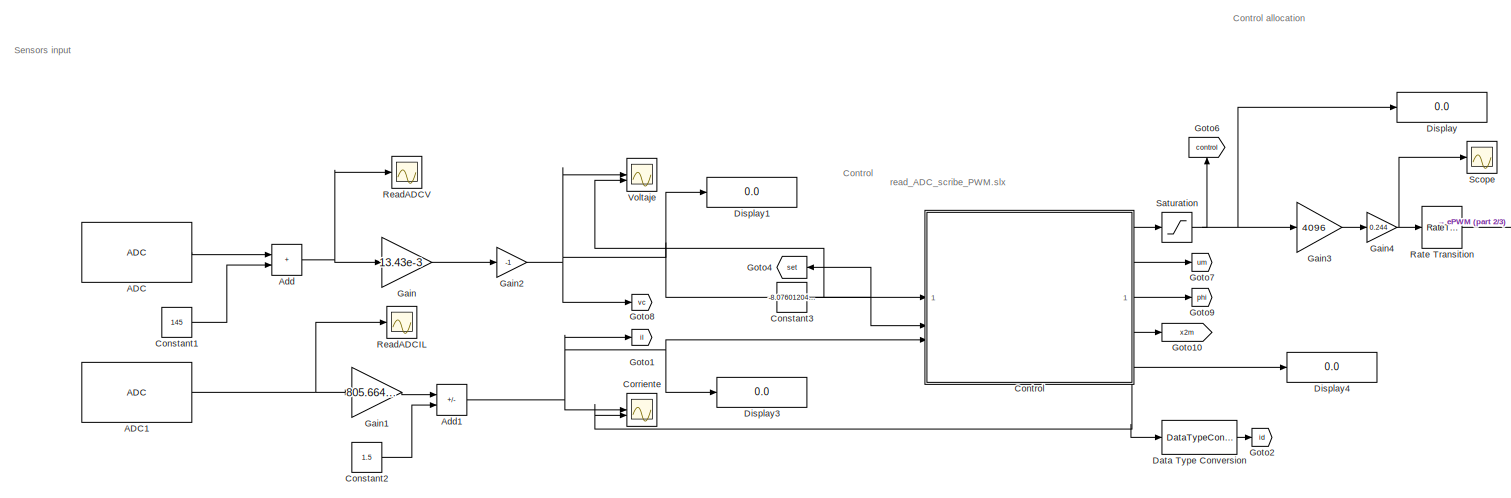
[diagram: root canvas - part 1/3, full width, top band]
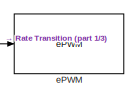
[diagram: root canvas - part 2/3, top right region]
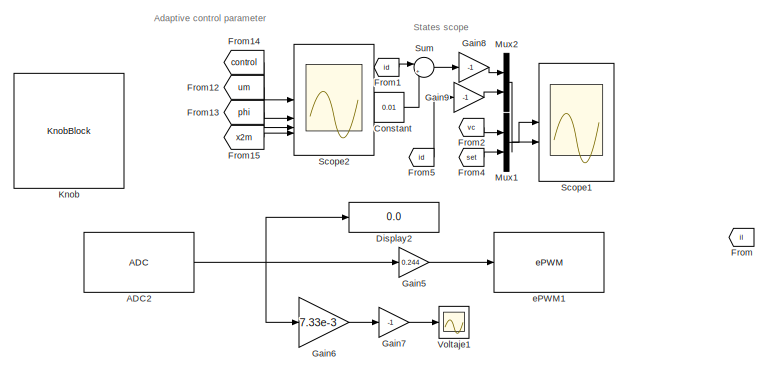
[diagram: root canvas - part 3/3, bottom center region]
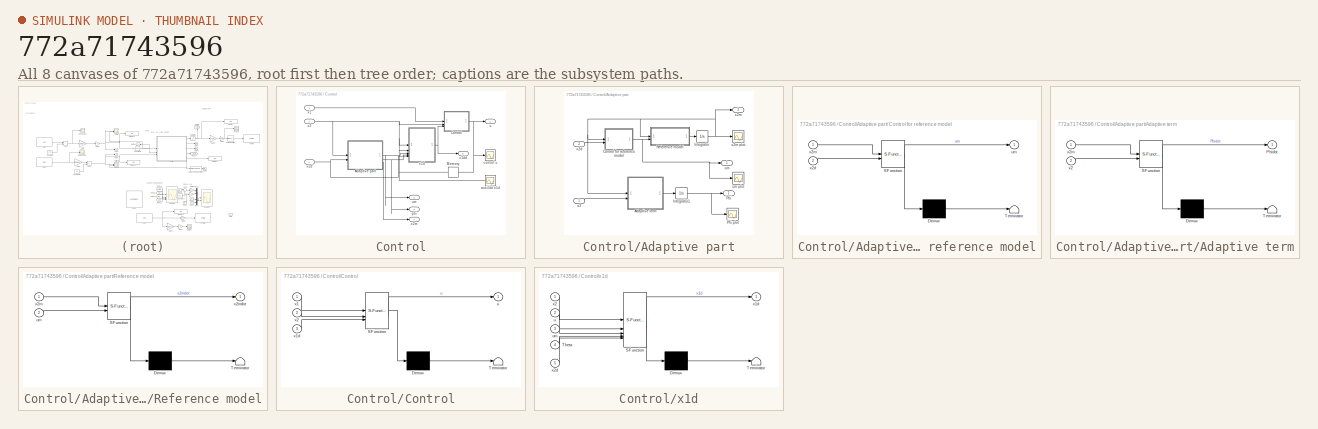
[diagram: thumbnail index - all 8 canvases of the model, root first then tree order]
MODEL slx_772a71743596
KIND model
CONFIG AbsTol = auto
CONFIG EnableMultiTasking = on
CONFIG FixedStep = Ts
CONFIG MaxStep = auto
CONFIG MinStep = auto
CONFIG RelTol = 1e-3
CONFIG SampleTimeConstraint = Unconstrained
CONFIG SolverName = FixedStepAuto
CONFIG StartTime = 0.0
CONFIG StopTime = Inf
BLOCK [Reference] ADC  REF=c2802xlib/ADC
  SourceBlock = c2802xlib/ADC
  SourceType = ADC Type 3-5
  UserDataPersistent = on
BLOCK [Reference] ADC1  REF=c2802xlib/ADC
  SourceBlock = c2802xlib/ADC
  SourceType = ADC Type 3-5
  UserDataPersistent = on
BLOCK [Reference] ADC2  REF=c2802xlib/ADC
  SourceBlock = c2802xlib/ADC
  SourceType = ADC Type 3-5
  UserDataPersistent = on
BLOCK [Sum] Add
  IconShape = rectangular
BLOCK [Sum] Add1
  IconShape = rectangular
  Inputs = +-
BLOCK [Constant] Constant
  Value = 0.01
BLOCK [Constant] Constant1
  Value = 145
BLOCK [Constant] Constant2
  Value = 1.5
BLOCK [Constant] Constant3
  Value = -8.076012049722078
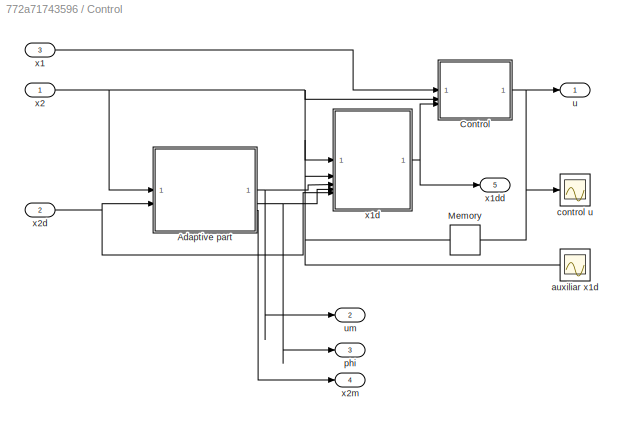
BLOCK [SubSystem] Control
BLOCK [SubSystem] Control/Adaptive part
BLOCK [SubSystem] Control/Adaptive part/ Control for reference model
  ErrorFcn = Stateflow.Translate.translate
  PermitHierarchicalResolution = ExplicitOnly
  SFBlockType = MATLAB Function
  TreatAsAtomicUnit = on
BLOCK [Demux] Control/Adaptive part/ Control for reference model/ Demux 
  Outputs = 1
BLOCK [S-Function] Control/Adaptive part/ Control for reference model/ SFunction 
  EnableBusSupport = on
  FunctionName = sf_sfun
  Parameters = am,bm,kapam,x2d_dot
  PortCounts = [2 2]
  SFcnIsStateOwnerBlock = off
  SFunctionDeploymentMode = off
  Tag = Stateflow S-Function 6
BLOCK [Terminator] Control/Adaptive part/ Control for reference model/ Terminator 
BLOCK [Outport] Control/Adaptive part/ Control for reference model/um
BLOCK [Inport] Control/Adaptive part/ Control for reference model/x2d
  Port = 2
BLOCK [Inport] Control/Adaptive part/ Control for reference model/x2m
BLOCK [SubSystem] Control/Adaptive part/Adaptive term
  ErrorFcn = Stateflow.Translate.translate
  PermitHierarchicalResolution = ExplicitOnly
  SFBlockType = MATLAB Function
  TreatAsAtomicUnit = on
BLOCK [Demux] Control/Adaptive part/Adaptive term/ Demux 
  Outputs = 1
BLOCK [S-Function] Control/Adaptive part/Adaptive term/ SFunction 
  EnableBusSupport = on
  FunctionName = sf_sfun
  Parameters = lambda
  PortCounts = [2 2]
  SFcnIsStateOwnerBlock = off
  SFunctionDeploymentMode = off
  Tag = Stateflow S-Function 5
BLOCK [Terminator] Control/Adaptive part/Adaptive term/ Terminator 
BLOCK [Outport] Control/Adaptive part/Adaptive term/Phidot
BLOCK [Inport] Control/Adaptive part/Adaptive term/x2
  Port = 2
BLOCK [Inport] Control/Adaptive part/Adaptive term/x2m
BLOCK [Integrator] Control/Adaptive part/Integrator
BLOCK [Integrator] Control/Adaptive part/Integrator1
BLOCK [Outport] Control/Adaptive part/Phi
  Port = 2
BLOCK [Scope] Control/Adaptive part/Phi plot
  Floating = off
  NumInputPorts = 1
  ScopeSpecificationString = Simulink.scopes.TimeScopeBlockCfg('CurrentConfiguration', extmgr.ConfigurationSet(extmgr.Configuration('Core','General UI',true),extmgr.Configuration('Core','Source UI',true),extmgr.Configuration('Sources','WiredSimulink',true,'DataLoggingVariableName','ScopeData2'),extmgr.Configuration('Visuals','Time Domain',true,'SerializedDisplays',{struct('MinYLimReal','8425.59888','MaxYLimReal','33025.95776'...<+1459ch>
BLOCK [SubSystem] Control/Adaptive part/Reference model
  ErrorFcn = Stateflow.Translate.translate
  PermitHierarchicalResolution = ExplicitOnly
  SFBlockType = MATLAB Function
  TreatAsAtomicUnit = on
BLOCK [Demux] Control/Adaptive part/Reference model/ Demux 
  Outputs = 1
BLOCK [S-Function] Control/Adaptive part/Reference model/ SFunction 
  EnableBusSupport = on
  FunctionName = sf_sfun
  Parameters = am,bm
  PortCounts = [2 2]
  SFcnIsStateOwnerBlock = off
  SFunctionDeploymentMode = off
  Tag = Stateflow S-Function 7
BLOCK [Terminator] Control/Adaptive part/Reference model/ Terminator 
BLOCK [Inport] Control/Adaptive part/Reference model/um
  Port = 2
BLOCK [Inport] Control/Adaptive part/Reference model/x2m
BLOCK [Outport] Control/Adaptive part/Reference model/x2mdot
BLOCK [Outport] Control/Adaptive part/um
BLOCK [Scope] Control/Adaptive part/um plot
  Floating = off
  NumInputPorts = 1
  ScopeSpecificationString = Simulink.scopes.TimeScopeBlockCfg('CurrentConfiguration', extmgr.ConfigurationSet(extmgr.Configuration('Core','General UI',true),extmgr.Configuration('Core','Source UI',true),extmgr.Configuration('Sources','WiredSimulink',true,'DataLoggingVariableName','ScopeData3'),extmgr.Configuration('Visuals','Time Domain',true,'SerializedDisplays',{struct('MinYLimReal','-2469.14331','MaxYLimReal','-1855.56665...<+1457ch>
BLOCK [Inport] Control/Adaptive part/x2
BLOCK [Inport] Control/Adaptive part/x2d
  Port = 2
BLOCK [Outport] Control/Adaptive part/x2m
  Port = 3
BLOCK [Scope] Control/Adaptive part/x2m plot
  Floating = off
  NumInputPorts = 1
  ScopeSpecificationString = Simulink.scopes.TimeScopeBlockCfg('CurrentConfiguration', extmgr.ConfigurationSet(extmgr.Configuration('Core','General UI',true),extmgr.Configuration('Core','Source UI',true),extmgr.Configuration('Sources','WiredSimulink',true,'DataLoggingVariableName','ScopeData1'),extmgr.Configuration('Visuals','Time Domain',true,'SerializedDisplays',{struct('MinYLimReal','-9.87657','MaxYLimReal','-7.42227','YLa...<+1435ch>
BLOCK [SubSystem] Control/Control
  ErrorFcn = Stateflow.Translate.translate
  PermitHierarchicalResolution = ExplicitOnly
  SFBlockType = MATLAB Function
  TreatAsAtomicUnit = on
BLOCK [Demux] Control/Control/ Demux 
  Outputs = 1
BLOCK [S-Function] Control/Control/ SFunction 
  EnableBusSupport = on
  FunctionName = sf_sfun
  Parameters = C,E,L,R,k1,k2
  PortCounts = [3 2]
  SFcnIsStateOwnerBlock = off
  SFunctionDeploymentMode = off
  Tag = Stateflow S-Function 1
BLOCK [Terminator] Control/Control/ Terminator 
BLOCK [Outport] Control/Control/u
BLOCK [Inport] Control/Control/x1
BLOCK [Inport] Control/Control/x1d
  Port = 3
BLOCK [Inport] Control/Control/x2
  Port = 2
BLOCK [Memory] Control/Memory
BLOCK [Scope] Control/auxiliar x1d
  Floating = off
  NumInputPorts = 1
  ScopeSpecificationString = Simulink.scopes.TimeScopeBlockCfg('CurrentConfiguration', extmgr.ConfigurationSet(extmgr.Configuration('Core','General UI',true),extmgr.Configuration('Core','Source UI',true),extmgr.Configuration('Sources','WiredSimulink',true,'DataLoggingVariableName','ScopeData3'),extmgr.Configuration('Visuals','Time Domain',true,'SerializedDisplays',{struct('MinYLimReal','-1.2496','MaxYLimReal','1.81772','YLabe...<+1431ch>
BLOCK [Scope] Control/control u
  Floating = off
  NumInputPorts = 1
  ScopeSpecificationString = Simulink.scopes.TimeScopeBlockCfg('CurrentConfiguration', extmgr.ConfigurationSet(extmgr.Configuration('Core','General UI',true),extmgr.Configuration('Core','Source UI',true),extmgr.Configuration('Sources','WiredSimulink',true,'DataLoggingVariableName','ScopeData2'),extmgr.Configuration('Visuals','Time Domain',true,'SerializedDisplays',{struct('MinYLimReal','-1.2496','MaxYLimReal','1.81772','YLabe...<+1431ch>
BLOCK [Outport] Control/phi
  Port = 3
BLOCK [Outport] Control/u
BLOCK [Outport] Control/um
  Port = 2
BLOCK [Inport] Control/x1
  Port = 3
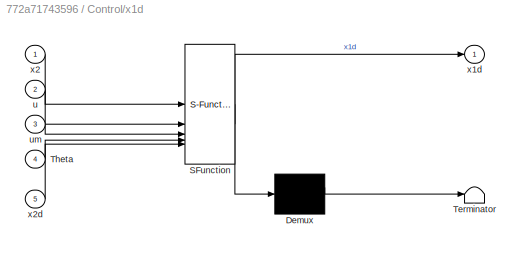
BLOCK [SubSystem] Control/x1d
  ErrorFcn = Stateflow.Translate.translate
  PermitHierarchicalResolution = ExplicitOnly
  SFBlockType = MATLAB Function
  TreatAsAtomicUnit = on
BLOCK [Demux] Control/x1d/ Demux 
  Outputs = 1
BLOCK [S-Function] Control/x1d/ SFunction 
  EnableBusSupport = on
  FunctionName = sf_sfun
  Parameters = C,Qaster,bm,k2
  PortCounts = [5 2]
  SFcnIsStateOwnerBlock = off
  SFunctionDeploymentMode = off
  Tag = Stateflow S-Function 3
BLOCK [Terminator] Control/x1d/ Terminator 
BLOCK [Inport] Control/x1d/Theta
  Port = 4
BLOCK [Inport] Control/x1d/u
  Port = 2
BLOCK [Inport] Control/x1d/um
  Port = 3
BLOCK [Outport] Control/x1d/x1d
BLOCK [Inport] Control/x1d/x2
BLOCK [Inport] Control/x1d/x2d
  Port = 5
BLOCK [Outport] Control/x1dd
  Port = 5
BLOCK [Inport] Control/x2
BLOCK [Inport] Control/x2d
  Port = 2
BLOCK [Outport] Control/x2m
  Port = 4
BLOCK [Scope] Corriente
  Floating = off
  NumInputPorts = 2
  ScopeSpecificationString = Simulink.scopes.TimeScopeBlockCfg('CurrentConfiguration', extmgr.ConfigurationSet(extmgr.Configuration('Core','General UI',true),extmgr.Configuration('Core','Source UI',true),extmgr.Configuration('Sources','WiredSimulink',true,'DataLoggingVariableName','corriente','DataLogging',true,'DataLoggingSaveFormat','StructureWithTime'),extmgr.Configuration('Visuals','Time Domain',true,'SerializedDisplays',...<+1527ch>
BLOCK [DataTypeConversion] Data Type Conversion
  OutDataTypeStr = double
  RndMeth = Floor
  SaturateOnIntegerOverflow = off
BLOCK [Display] Display
  Decimation = 1
BLOCK [Display] Display1
  Decimation = 1
BLOCK [Display] Display2
  Decimation = 1
BLOCK [Display] Display3
  Decimation = 1
BLOCK [Display] Display4
  Decimation = 1
BLOCK [From] From
  GotoTag = il
  NameLocation = top
BLOCK [From] From1
  GotoTag = id
  NameLocation = top
BLOCK [From] From12
  GotoTag = um
  NameLocation = top
BLOCK [From] From13
  GotoTag = phi
  NameLocation = top
BLOCK [From] From14
  GotoTag = control
  NameLocation = top
BLOCK [From] From15
  GotoTag = x2m
  NameLocation = top
BLOCK [From] From2
  GotoTag = vc
  NameLocation = top
BLOCK [From] From4
  GotoTag = set
  NameLocation = top
BLOCK [From] From5
  GotoTag = id
  NameLocation = top
BLOCK [Gain] Gain
  Gain = 13.43e-3
  ParamDataTypeStr = double
BLOCK [Gain] Gain1
  Gain = 805.664e-6
  ParamDataTypeStr = double
BLOCK [Gain] Gain2
  Gain = -1
  ParamDataTypeStr = double
BLOCK [Gain] Gain3
  Gain = 4096
BLOCK [Gain] Gain4
  Gain = 0.244
BLOCK [Gain] Gain5
  Gain = 0.244
  OutDataTypeStr = double
BLOCK [Gain] Gain6
  Gain = 7.33e-3
  ParamDataTypeStr = double
BLOCK [Gain] Gain7
  Gain = -1
  ParamDataTypeStr = double
BLOCK [Gain] Gain8
  Gain = -1
BLOCK [Gain] Gain9
  Gain = -1
BLOCK [Goto] Goto1
  GotoTag = il
BLOCK [Goto] Goto10
  GotoTag = x2m
BLOCK [Goto] Goto2
  GotoTag = id
BLOCK [Goto] Goto4
  GotoTag = set
  NameLocation = top
BLOCK [Goto] Goto6
  GotoTag = control
  NameLocation = right
BLOCK [Goto] Goto7
  GotoTag = um
BLOCK [Goto] Goto8
  GotoTag = vc
BLOCK [Goto] Goto9
  GotoTag = phi
BLOCK [KnobBlock] Knob
  ScaleMax = 0
  ScaleMin = -20
BLOCK [Mux] Mux1
  DisplayOption = bar
  Inputs = 2
BLOCK [Mux] Mux2
  DisplayOption = bar
  Inputs = 2
BLOCK [RateTransition] Rate Transition
BLOCK [Scope] ReadADCIL
  Floating = off
  NumInputPorts = 1
  ScopeSpecificationString = Simulink.scopes.TimeScopeBlockCfg('CurrentConfiguration', extmgr.ConfigurationSet(extmgr.Configuration('Core','General UI',true),extmgr.Configuration('Core','Source UI',true),extmgr.Configuration('Sources','WiredSimulink',true,'DataLoggingVariableName','ScopeData2'),extmgr.Configuration('Visuals','Time Domain',true,'SerializedDisplays',{struct('MinYLimReal','0','MaxYLimReal','4095','YLabelReal',''...<+1411ch>
BLOCK [Scope] ReadADCV
  Floating = off
  NumInputPorts = 1
  ScopeSpecificationString = Simulink.scopes.TimeScopeBlockCfg('CurrentConfiguration', extmgr.ConfigurationSet(extmgr.Configuration('Core','General UI',true),extmgr.Configuration('Core','Source UI',true),extmgr.Configuration('Sources','WiredSimulink',true),extmgr.Configuration('Visuals','Time Domain',true,'SerializedDisplays',{struct('MinYLimReal','907.375','MaxYLimReal','913.625','YLabelReal','','MinYLimMag','907.375','MaxYL...<+1390ch>
BLOCK [Saturate] Saturation
  LowerLimit = -50
  UpperLimit = 1
BLOCK [Scope] Scope
  Floating = off
  NumInputPorts = 1
  ScopeSpecificationString = Simulink.scopes.TimeScopeBlockCfg('CurrentConfiguration', extmgr.ConfigurationSet(extmgr.Configuration('Core','General UI',true),extmgr.Configuration('Core','Source UI',true),extmgr.Configuration('Sources','WiredSimulink',true,'DataLoggingVariableName','ScopeData1'),extmgr.Configuration('Visuals','Time Domain',true,'SerializedDisplays',{struct('MinYLimReal','5339.52411','MaxYLimReal','5486.60236',...<+1432ch>
BLOCK [Scope] Scope1
  Floating = off
  NumInputPorts = 2
  ScopeSpecificationString = Simulink.scopes.TimeScopeBlockCfg('CurrentConfiguration', extmgr.ConfigurationSet(extmgr.Configuration('Core','General UI',true),extmgr.Configuration('Core','Source UI',true),extmgr.Configuration('Sources','WiredSimulink',true,'DataLoggingVariableName','states','DataLogging',true,'DataLoggingSaveFormat','StructureWithTime'),extmgr.Configuration('Visuals','Time Domain',true,'SerializedDisplays',{st...<+2388ch>
BLOCK [Scope] Scope2
  Floating = off
  NumInputPorts = 4
  ScopeSpecificationString = Simulink.scopes.TimeScopeBlockCfg('CurrentConfiguration', extmgr.ConfigurationSet(extmgr.Configuration('Core','General UI',true),extmgr.Configuration('Core','Source UI',true),extmgr.Configuration('Sources','WiredSimulink',true,'DataLoggingVariableName','controlvariables','DataLogging',true,'DataLoggingSaveFormat','StructureWithTime'),extmgr.Configuration('Visuals','Time Domain',true,'SerializedDis...<+3916ch>
BLOCK [Sum] Sum
  Inputs = |++
BLOCK [Scope] Voltaje
  Floating = off
  NumInputPorts = 2
  ScopeSpecificationString = Simulink.scopes.TimeScopeBlockCfg('CurrentConfiguration', extmgr.ConfigurationSet(extmgr.Configuration('Core','General UI',true),extmgr.Configuration('Core','Source UI',true),extmgr.Configuration('Sources','WiredSimulink',true,'DataLoggingVariableName','voltaje','DataLogging',true,'DataLoggingSaveFormat','StructureWithTime'),extmgr.Configuration('Visuals','Time Domain',true,'SerializedDisplays',{s...<+1511ch>
BLOCK [Scope] Voltaje1
  Floating = off
  NumInputPorts = 1
  ScopeSpecificationString = Simulink.scopes.TimeScopeBlockCfg('CurrentConfiguration', extmgr.ConfigurationSet(extmgr.Configuration('Core','General UI',true),extmgr.Configuration('Core','Source UI',true),extmgr.Configuration('Sources','WiredSimulink',true,'DataLoggingVariableName','ScopeData1'),extmgr.Configuration('Visuals','Time Domain',true,'SerializedDisplays',{struct('MinYLimReal','-27.39313','MaxYLimReal','-27.16406','Y...<+1444ch>
BLOCK [Reference] ePWM  REF=c2802xlib/ePWM
  SourceBlock = c2802xlib/ePWM
  SourceType = ePWM Type 1-4
  UserDataPersistent = on
BLOCK [Reference] ePWM1  REF=c2802xlib/ePWM
  SourceBlock = c2802xlib/ePWM
  SourceType = ePWM Type 1-4
  UserDataPersistent = on
ANNOTATION (root): Adaptive control parameter
ANNOTATION (root): Control
ANNOTATION (root): Control allocation
ANNOTATION (root): Sensors input
ANNOTATION (root): States scope
ANNOTATION (root): read_ADC_scribe_PWM.slx
NET ADC1:1 -> Gain1:1, ReadADCIL:1
NET ADC2:1 -> Display2:1, Gain5:1, Gain6:1
LINE ADC:1 -> Add:1
NET Add1:1 -> Control:3, Corriente:1, Display3:1, Goto1:1
NET Add:1 -> Gain:1, ReadADCV:1
LINE Constant1:1 -> Add:2
LINE Constant2:1 -> Add1:2
NET Constant3:1 -> Control:2, Goto4:1, Voltaje:2
LINE Constant:1 -> Sum:2
NET Control/Adaptive part/ Control for reference model:1 -> Control/Adaptive part/Reference model:2, Control/Adaptive part/um plot:1, Control/Adaptive part/um:1
LINE Control/Adaptive part/Adaptive term:1 -> Control/Adaptive part/Integrator1:1
NET Control/Adaptive part/Integrator1:1 -> Control/Adaptive part/Phi plot:1, Control/Adaptive part/Phi:1
NET Control/Adaptive part/Integrator:1 -> Control/Adaptive part/ Control for reference model:1, Control/Adaptive part/Adaptive term:1, Control/Adaptive part/Reference model:1, Control/Adaptive part/x2m plot:1, Control/Adaptive part/x2m:1
LINE Control/Adaptive part/Reference model:1 -> Control/Adaptive part/Integrator:1
LINE Control/Adaptive part/x2:1 -> Control/Adaptive part/Adaptive term:2
LINE Control/Adaptive part/x2d:1 -> Control/Adaptive part/ Control for reference model:2
NET Control/Adaptive part:1 -> Control/um:1, Control/x1d:3
NET Control/Adaptive part:2 -> Control/phi:1, Control/x1d:4
LINE Control/Adaptive part:3 -> Control/x2m:1
NET Control/Control:1 -> Control/Memory:1, Control/control u:1, Control/u:1
NET Control/Memory:1 -> Control/auxiliar x1d:1, Control/x1d:2
LINE Control/x1:1 -> Control/Control:1
NET Control/x1d:1 -> Control/Control:3, Control/x1dd:1
NET Control/x2:1 -> Control/Adaptive part:1, Control/Control:2, Control/x1d:1
NET Control/x2d:1 -> Control/Adaptive part:2, Control/x1d:5
LINE Control:1 -> Saturation:1
LINE Control:2 -> Goto7:1
LINE Control:3 -> Goto9:1
LINE Control:4 -> Goto10:1
NET Control:5 -> Corriente:2, Data Type Conversion:1, Display4:1
LINE Data Type Conversion:1 -> Goto2:1
LINE From12:1 -> Scope2:2
LINE From13:1 -> Scope2:3
LINE From14:1 -> Scope2:1
LINE From15:1 -> Scope2:4
LINE From1:1 -> Sum:1
LINE From2:1 -> Mux1:1
LINE From4:1 -> Mux1:2
LINE From5:1 -> Gain9:1
LINE Gain1:1 -> Add1:1
NET Gain2:1 -> Control:1, Display1:1, Goto8:1, Voltaje:1
LINE Gain3:1 -> Gain4:1
NET Gain4:1 -> Rate Transition:1, Scope:1
LINE Gain5:1 -> ePWM1:1
LINE Gain6:1 -> Gain7:1
LINE Gain7:1 -> Voltaje1:1
LINE Gain8:1 -> Mux2:1
LINE Gain9:1 -> Mux2:2
LINE Gain:1 -> Gain2:1
LINE Mux1:1 -> Scope1:1
LINE Mux2:1 -> Scope1:2
LINE Rate Transition:1 -> ePWM:1
NET Saturation:1 -> Display:1, Gain3:1, Goto6:1
LINE Sum:1 -> Gain8:1
note: NET lines group one-source signal fan-out (src -> all destinations, sorted); 1:1 wires keep LINE
CHART Control/Control states=1 transitions=1
  STATE_LABEL 'eML_blk_kernel()'
  STATE_LABEL 'SCRIPT:\nfunction u = control(x1, x2, x1d, E, R, C, L, k1, k2)\n\n%error\ne1 = x1 - x1d;\n\n\n%control\n%u = ( E + k1*L*sign(e1) ) / ( x2 - E) + 1 ;\n%u = ( E + k1*L*(e1) ) / ( x2 - E) + 1 ;\nu = sigma( L * (k1 * sqrt(abs(e1)) * sign(e1) + E) / (x2 - E) + 1 );'
CHART Control/x1d states=1 transitions=1
  STATE_LABEL 'eML_blk_kernel()'
  STATE_LABEL 'SCRIPT:\nfunction x1d = des(x2, u, um, Theta, k2, C, bm, Qaster, x2d)\n\n%error\ne2 = x2 - x2d;\n\n%Auxiliar control\n\n%x1d = (( - C*Theta*x2 - C*Qaster*um + k2*C*sign(e2) ) / (1-u))+ 0.001;\n%x1d = (( - C*Theta*x2 - C*Qaster*um + k2*C*(e2) ) / (1-u))+ 0.0001;\n%x1d = (( - C*Theta*x2 - C*Qaster*um + k2*C*sign(e2) ) / (1-u));\nx1d = C * (k2 * sqrt(abs(e2)) * sign(e2) - Theta * x2 - bm * um) / (1 - u);'
CHART Control/Adaptive part/Adaptive term states=1 transitions=1
  STATE_LABEL 'eML_blk_kernel()'
  STATE_LABEL 'SCRIPT:\nfunction Phidot = adaptive(x2m, x2, lambda)\n\n%error:\ne2 = x2 - x2m;\n\n%Adaptive Law:\nPhidot = - lambda*e2*x2;\n'
CHART Control/Adaptive part/ Control for reference model states=1 transitions=1
  STATE_LABEL 'eML_blk_kernel()'
  STATE_LABEL 'SCRIPT:\nfunction um = MRC(x2m, x2d_dot, am, bm, kapam, x2d)\n\num = (1/bm) * ( x2d_dot + am * x2m - kapam * (x2m - x2d) );\n'
CHART Control/Adaptive part/Reference model states=1 transitions=1
  STATE_LABEL 'eML_blk_kernel()'
  STATE_LABEL 'SCRIPT:\nfunction x2mdot = mrsystem(x2m, um, bm, am)\n\nx2mdot = - am * x2m  +  bm * um ;\n'
CHART  states=0 transitions=0
CHART  states=0 transitions=0
CHART  states=0 transitions=0
CHART  states=0 transitions=0
CHART  states=0 transitions=0
